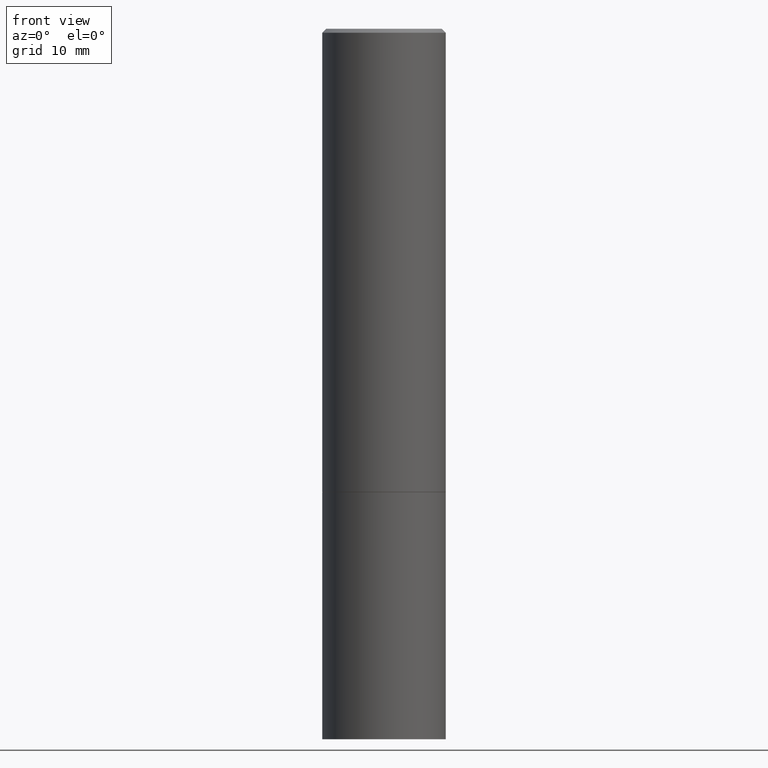
[diagram: clean part render]
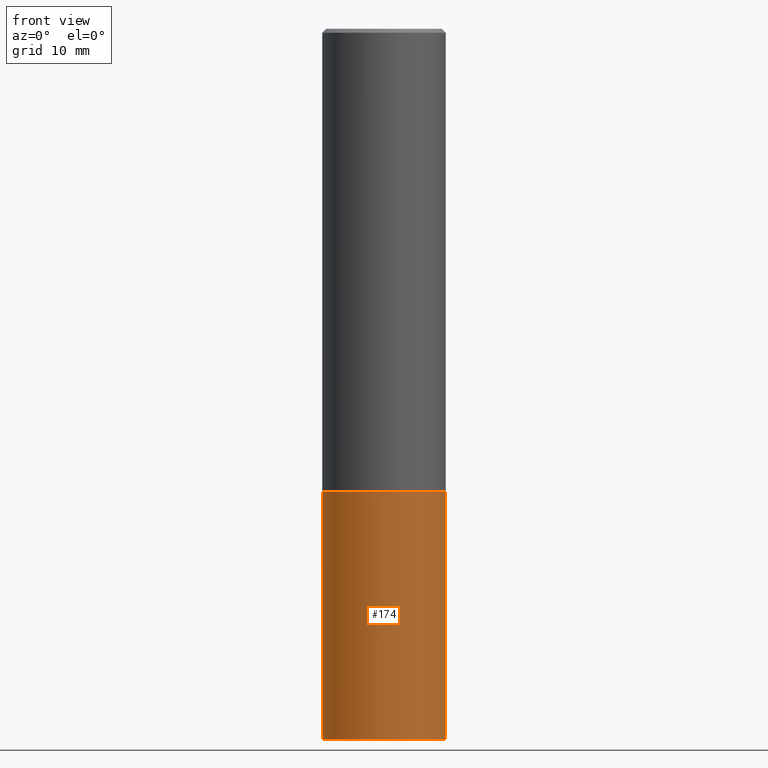
[diagram: same view with one face highlighted and labeled with its STEP entity id]
A machine part, front view. The second image highlights one B-rep face of the part: STEP entity #174.
In plain terms, the highlighted cylindrical surface (partial cylindrical patch) has radius 7.9997 mm, axis along (-0, 0, 1).
Its self-contained STEP definition (entity closure, byte-faithful):
#13 = VERTEX_POINT ( 'NONE', #100 ) ;
#18 = DIRECTION ( 'NONE',  ( 1.000000000000000000, -6.982962677686263555E-15, 0.000000000000000000 ) ) ;
#35 = LINE ( 'NONE', #196, #98 ) ;
#44 = DIRECTION ( 'NONE',  ( -2.445468806185136597E-29, 3.491481338843145583E-15, 1.000000000000000000 ) ) ;
#46 = DIRECTION ( 'NONE',  ( -2.445468806185136597E-29, 3.491481338843145583E-15, 1.000000000000000000 ) ) ;
#51 = CARTESIAN_POINT ( 'NONE',  ( 0.3149500000000000077, -1.044686131395256792E-14, -2.362199999999999633 ) ) ;
#55 = CIRCLE ( 'NONE', #160, 0.3149500000000000077 ) ;
#58 = LINE ( 'NONE', #116, #255 ) ;
#69 = VERTEX_POINT ( 'NONE', #158 ) ;
#73 = DIRECTION ( 'NONE',  ( -2.445468806185136597E-29, 3.491481338843145583E-15, 1.000000000000000000 ) ) ;
#74 = ORIENTED_EDGE ( 'NONE', *, *, #343, .T. ) ;
#75 = DIRECTION ( 'NONE',  ( 1.000000000000000000, -6.982962677686266711E-15, 0.000000000000000000 ) ) ;
#89 = EDGE_CURVE ( 'NONE', #69, #13, #58, .T. ) ;
#98 = VECTOR ( 'NONE', #297, 39.37007874015748143 ) ;
#100 = CARTESIAN_POINT ( 'NONE',  ( -0.3149500000000000077, -8.209006967676139823E-15, -2.362199999999999633 ) ) ;
#101 = CARTESIAN_POINT ( 'NONE',  ( 0.000000000000000000, 0.000000000000000000, 0.000000000000000000 ) ) ;
#111 = DIRECTION ( 'NONE',  ( 1.000000000000000000, -6.982962677686266711E-15, 4.876176775795936353E-29 ) ) ;
#113 = ORIENTED_EDGE ( 'NONE', *, *, #89, .F. ) ;
#116 = CARTESIAN_POINT ( 'NONE',  ( -0.3149500000000000077, 2.237854346276435590E-15, -1.549218606675782676E-29 ) ) ;
#127 = EDGE_CURVE ( 'NONE', #183, #136, #35, .T. ) ;
#136 = VERTEX_POINT ( 'NONE', #51 ) ;
#158 = CARTESIAN_POINT ( 'NONE',  ( -0.3149500000000000077, -8.209006967676139823E-15, -3.621999999999999886 ) ) ;
#160 = AXIS2_PLACEMENT_3D ( 'NONE', #350, #44, #18 ) ;
#167 = CARTESIAN_POINT ( 'NONE',  ( 0.3149500000000000077, -1.484542950462716186E-14, -3.621999999999999886 ) ) ;
#174 = ADVANCED_FACE ( 'NONE', ( #358 ), #243, .T. ) ;
#183 = VERTEX_POINT ( 'NONE', #167 ) ;
#193 = AXIS2_PLACEMENT_3D ( 'NONE', #290, #46, #75 ) ;
#196 = CARTESIAN_POINT ( 'NONE',  ( 0.3149500000000000077, -2.199284095337289871E-15, 1.535751875536930130E-29 ) ) ;
#198 = DIRECTION ( 'NONE',  ( -2.445468806185136877E-29, 3.491481338843145188E-15, 1.000000000000000000 ) ) ;
#233 = EDGE_CURVE ( 'NONE', #13, #136, #262, .T. ) ;
#237 = EDGE_LOOP ( 'NONE', ( #113, #74, #241, #315 ) ) ;
#241 = ORIENTED_EDGE ( 'NONE', *, *, #127, .T. ) ;
#243 = CYLINDRICAL_SURFACE ( 'NONE', #345, 0.3149500000000000077 ) ;
#255 = VECTOR ( 'NONE', #198, 39.37007874015748143 ) ;
#262 = CIRCLE ( 'NONE', #193, 0.3149500000000000077 ) ;
#290 = CARTESIAN_POINT ( 'NONE',  ( 5.776686413970529753E-29, -8.247577218615278049E-15, -2.362199999999999633 ) ) ;
#297 = DIRECTION ( 'NONE',  ( -2.445468806185136877E-29, 3.491481338843145188E-15, 1.000000000000000000 ) ) ;
#315 = ORIENTED_EDGE ( 'NONE', *, *, #233, .F. ) ;
#343 = EDGE_CURVE ( 'NONE', #69, #183, #55, .T. ) ;
#345 = AXIS2_PLACEMENT_3D ( 'NONE', #101, #73, #111 ) ;
#350 = CARTESIAN_POINT ( 'NONE',  ( 8.857488016002564476E-29, -1.264614540928987199E-14, -3.621999999999999886 ) ) ;
#358 = FACE_OUTER_BOUND ( 'NONE', #237, .T. ) ;